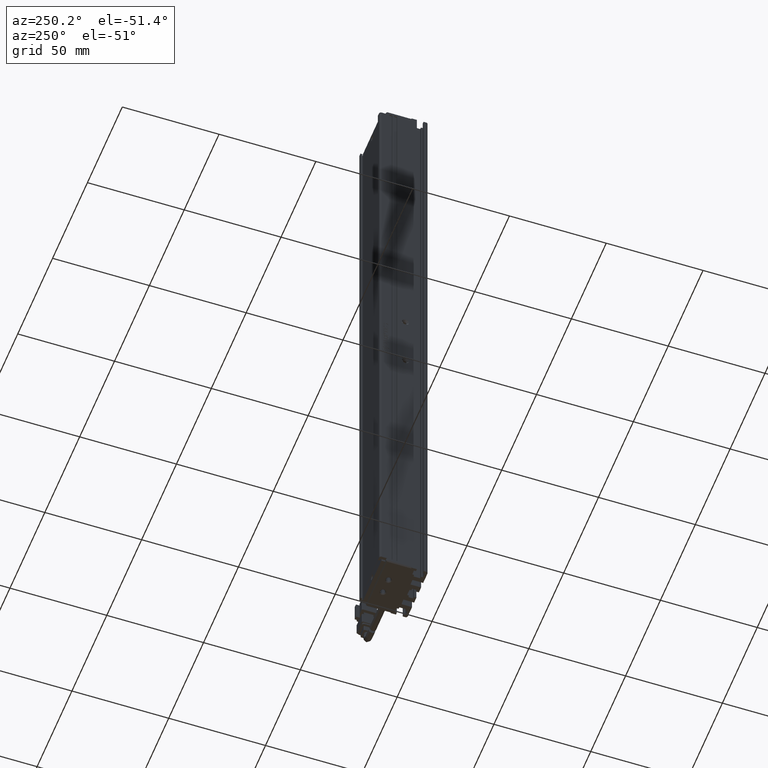
[diagram: clean part render]
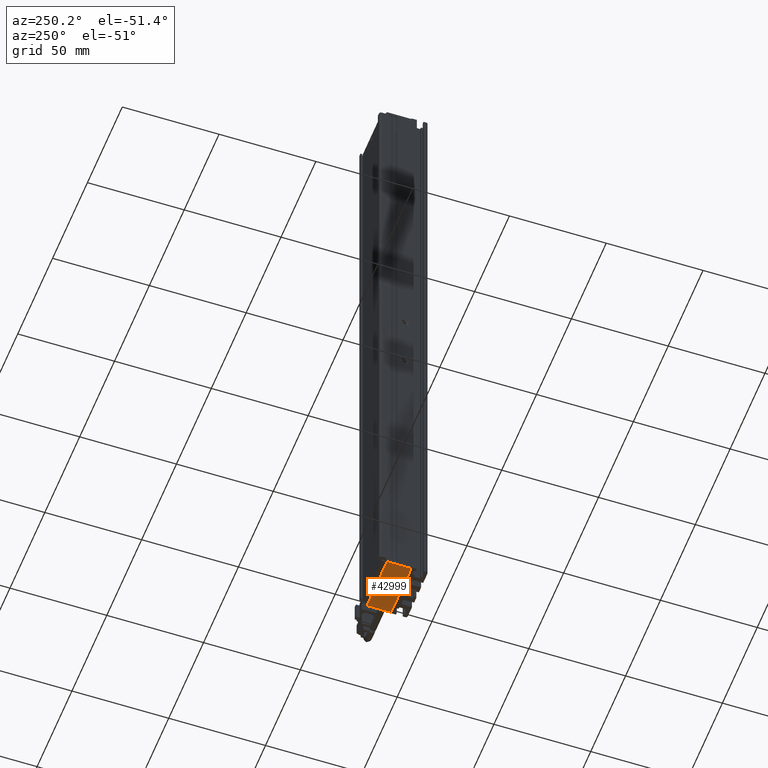
[diagram: same view with one face highlighted and labeled with its STEP entity id]
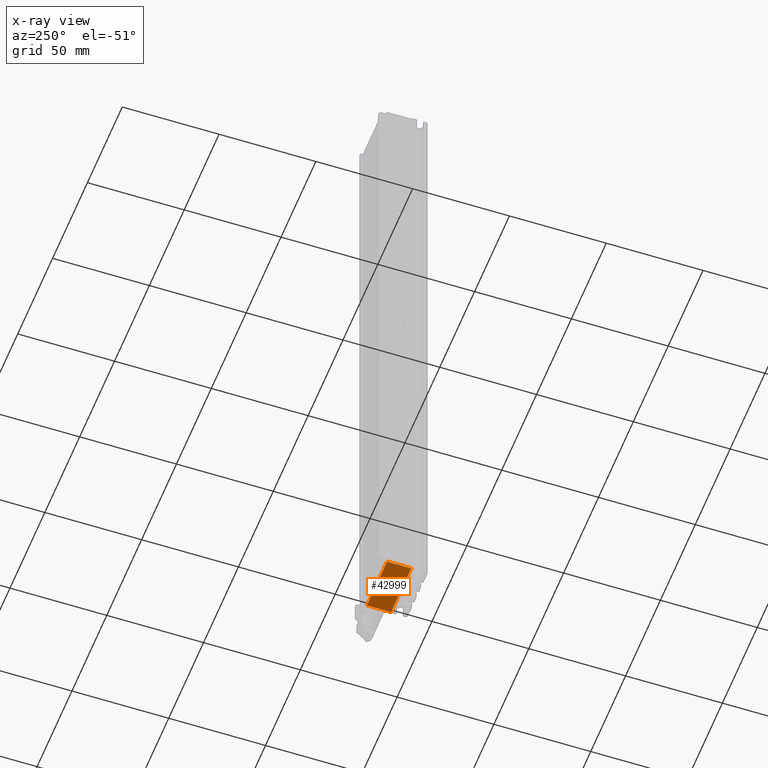
[diagram: x-ray of the same camera — body ghosted, the highlighted face saturated]
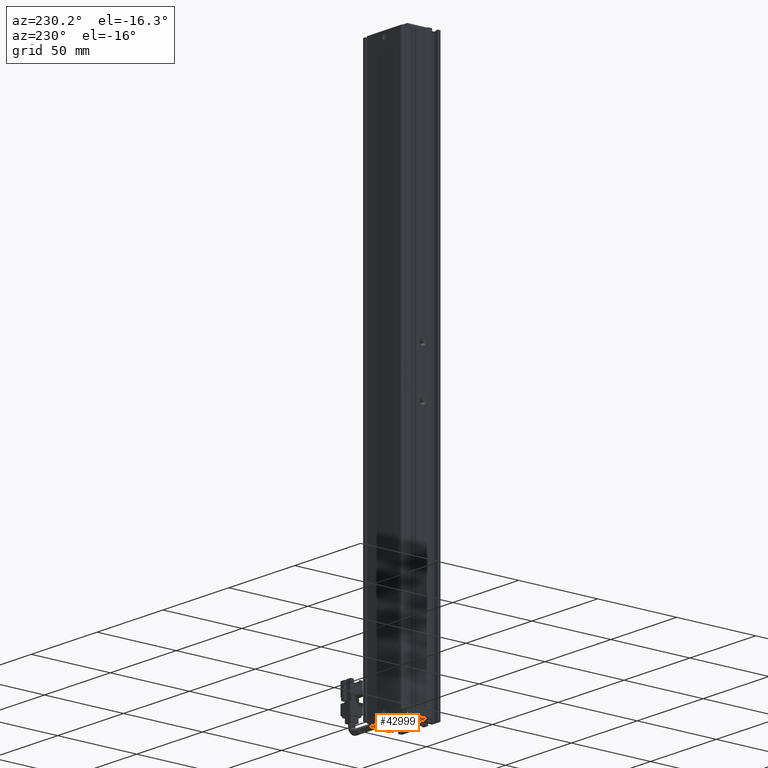
[diagram: same view with one face highlighted and labeled with its STEP entity id]
A machine part, auxiliary view. The second image highlights one B-rep face of the part: STEP entity #42999.
The next image is the same camera in x-ray: the body ghosted, the highlighted face saturated — about 0% of this face is hidden behind the body in this view.
A second angle (auxiliary view) of the same face is appended — the face is thin or edge-on in the first view.
In plain terms, the highlighted planar face has unit normal (0, 0, -1).
Its self-contained STEP definition (entity closure, byte-faithful):
#710 = VECTOR ( 'NONE', #64110, 1000.000000000000000 ) ;
#966 = FACE_BOUND ( 'NONE', #46968, .T. ) ;
#1282 = CARTESIAN_POINT ( 'NONE',  ( 44.92537974683542500, 27.19594479660386500, -290.0000000000000000 ) ) ;
#1434 = CARTESIAN_POINT ( 'NONE',  ( 44.92537974683542500, 27.19594479660386500, -290.0000000000000000 ) ) ;
#1730 = DIRECTION ( 'NONE',  ( -0.0000000000000000000, -0.0000000000000000000, 1.000000000000000000 ) ) ;
#2057 = DIRECTION ( 'NONE',  ( -0.0000000000000000000, -1.000000000000000000, -0.0000000000000000000 ) ) ;
#2204 = AXIS2_PLACEMENT_3D ( 'NONE', #33611, #2539, #38862 ) ;
#2539 = DIRECTION ( 'NONE',  ( -0.0000000000000000000, -0.0000000000000000000, 1.000000000000000000 ) ) ;
#4023 = EDGE_CURVE ( 'NONE', #12435, #7405, #14494, .T. ) ;
#4355 = CARTESIAN_POINT ( 'NONE',  ( 46.62537974684434500, 27.19594479660386500, -290.0000000000000000 ) ) ;
#5517 = VERTEX_POINT ( 'NONE', #64026 ) ;
#5543 = AXIS2_PLACEMENT_3D ( 'NONE', #1434, #37759, #6563 ) ;
#6319 = VERTEX_POINT ( 'NONE', #20261 ) ;
#6428 = DIRECTION ( 'NONE',  ( -1.000000000000000000, 0.0000000000000000000, 0.0000000000000000000 ) ) ;
#6563 = DIRECTION ( 'NONE',  ( -1.000000000000000000, 0.0000000000000000000, 0.0000000000000000000 ) ) ;
#7405 = VERTEX_POINT ( 'NONE', #40309 ) ;
#10495 = VERTEX_POINT ( 'NONE', #43727 ) ;
#10537 = CARTESIAN_POINT ( 'NONE',  ( 35.22537974680740500, 27.19594479660386500, -289.9999999999809000 ) ) ;
#10803 = CIRCLE ( 'NONE', #5543, 1.700000000008916600 ) ;
#12435 = VERTEX_POINT ( 'NONE', #4355 ) ;
#12541 = VECTOR ( 'NONE', #63627, 1000.000000000000000 ) ;
#13940 = VERTEX_POINT ( 'NONE', #65558 ) ;
#14494 = CIRCLE ( 'NONE', #32860, 1.700000000008916600 ) ;
#17324 = EDGE_CURVE ( 'NONE', #5517, #6319, #40585, .T. ) ;
#18088 = EDGE_CURVE ( 'NONE', #10495, #5517, #24832, .T. ) ;
#18181 = EDGE_LOOP ( 'NONE', ( #30276, #65957 ) ) ;
#18844 = VERTEX_POINT ( 'NONE', #10537 ) ;
#20261 = CARTESIAN_POINT ( 'NONE',  ( 26.42537974683542500, 31.69594479660386800, -290.0000000000000000 ) ) ;
#20360 = ORIENTED_EDGE ( 'NONE', *, *, #38757, .T. ) ;
#21578 = PLANE ( 'NONE',  #34920 ) ;
#21803 = CARTESIAN_POINT ( 'NONE',  ( 40.92537974683542500, 25.69594479660386500, -290.0000000000000000 ) ) ;
#22719 = CARTESIAN_POINT ( 'NONE',  ( 55.42537974683541800, 25.69594479660386500, -290.0000000000000000 ) ) ;
#24832 = LINE ( 'NONE', #40702, #64852 ) ;
#26984 = FACE_BOUND ( 'NONE', #18181, .T. ) ;
#27062 = DIRECTION ( 'NONE',  ( -1.000000000000000000, 0.0000000000000000000, -0.0000000000000000000 ) ) ;
#27250 = EDGE_CURVE ( 'NONE', #6319, #65155, #52499, .T. ) ;
#30064 = ORIENTED_EDGE ( 'NONE', *, *, #4023, .T. ) ;
#30276 = ORIENTED_EDGE ( 'NONE', *, *, #37240, .T. ) ;
#32292 = CARTESIAN_POINT ( 'NONE',  ( 40.92537974683542500, 31.69594479660386500, -290.0000000000000000 ) ) ;
#32802 = CARTESIAN_POINT ( 'NONE',  ( 36.92537974683541800, 27.19594479660386500, -289.9999999999809000 ) ) ;
#32860 = AXIS2_PLACEMENT_3D ( 'NONE', #1282, #37603, #6428 ) ;
#33097 = ORIENTED_EDGE ( 'NONE', *, *, #27250, .T. ) ;
#33611 = CARTESIAN_POINT ( 'NONE',  ( 36.92537974683541800, 27.19594479660386500, -289.9999999999809000 ) ) ;
#34920 = AXIS2_PLACEMENT_3D ( 'NONE', #21803, #58328, #27062 ) ;
#37240 = EDGE_CURVE ( 'NONE', #18844, #13940, #63030, .T. ) ;
#37603 = DIRECTION ( 'NONE',  ( -0.0000000000000000000, -0.0000000000000000000, 1.000000000000000000 ) ) ;
#37759 = DIRECTION ( 'NONE',  ( -0.0000000000000000000, -0.0000000000000000000, 1.000000000000000000 ) ) ;
#38061 = DIRECTION ( 'NONE',  ( -1.000000000000000000, 0.0000000000000000000, 0.0000000000000000000 ) ) ;
#38757 = EDGE_CURVE ( 'NONE', #65155, #10495, #43771, .T. ) ;
#38862 = DIRECTION ( 'NONE',  ( -1.000000000000000000, 0.0000000000000000000, 0.0000000000000000000 ) ) ;
#40309 = CARTESIAN_POINT ( 'NONE',  ( 43.22537974682651200, 27.19594479660386500, -290.0000000000000000 ) ) ;
#40585 = LINE ( 'NONE', #64337, #710 ) ;
#40702 = CARTESIAN_POINT ( 'NONE',  ( 40.92537974683542500, 19.19594479660386500, -290.0000000000000000 ) ) ;
#40838 = FACE_OUTER_BOUND ( 'NONE', #63188, .T. ) ;
#42139 = VECTOR ( 'NONE', #2057, 1000.000000000000000 ) ;
#42999 = ADVANCED_FACE ( 'NONE', ( #40838, #26984, #966 ), #21578, .T. ) ;
#43727 = CARTESIAN_POINT ( 'NONE',  ( 55.42537974683541100, 19.19594479660386500, -290.0000000000000000 ) ) ;
#43771 = LINE ( 'NONE', #22719, #42139 ) ;
#43816 = ORIENTED_EDGE ( 'NONE', *, *, #18088, .T. ) ;
#45934 = DIRECTION ( 'NONE',  ( -1.000000000000000000, 0.0000000000000000000, -0.0000000000000000000 ) ) ;
#46968 = EDGE_LOOP ( 'NONE', ( #56517, #30064 ) ) ;
#48902 = ORIENTED_EDGE ( 'NONE', *, *, #17324, .T. ) ;
#52499 = LINE ( 'NONE', #32292, #12541 ) ;
#53633 = EDGE_CURVE ( 'NONE', #7405, #12435, #10803, .T. ) ;
#54000 = AXIS2_PLACEMENT_3D ( 'NONE', #32802, #1730, #38061 ) ;
#56517 = ORIENTED_EDGE ( 'NONE', *, *, #53633, .T. ) ;
#57557 = CARTESIAN_POINT ( 'NONE',  ( 55.42537974683542500, 31.69594479660386800, -290.0000000000000000 ) ) ;
#58328 = DIRECTION ( 'NONE',  ( 0.0000000000000000000, 0.0000000000000000000, -1.000000000000000000 ) ) ;
#63030 = CIRCLE ( 'NONE', #2204, 1.700000000028012400 ) ;
#63188 = EDGE_LOOP ( 'NONE', ( #20360, #43816, #48902, #33097 ) ) ;
#63627 = DIRECTION ( 'NONE',  ( 1.000000000000000000, -0.0000000000000000000, 0.0000000000000000000 ) ) ;
#64026 = CARTESIAN_POINT ( 'NONE',  ( 26.42537974683542500, 19.19594479660386500, -290.0000000000000000 ) ) ;
#64110 = DIRECTION ( 'NONE',  ( 0.0000000000000000000, 1.000000000000000000, 0.0000000000000000000 ) ) ;
#64337 = CARTESIAN_POINT ( 'NONE',  ( 26.42537974683542500, 25.69594479660386500, -290.0000000000000000 ) ) ;
#64852 = VECTOR ( 'NONE', #45934, 1000.000000000000000 ) ;
#65155 = VERTEX_POINT ( 'NONE', #57557 ) ;
#65315 = EDGE_CURVE ( 'NONE', #13940, #18844, #65556, .T. ) ;
#65556 = CIRCLE ( 'NONE', #54000, 1.700000000028012400 ) ;
#65558 = CARTESIAN_POINT ( 'NONE',  ( 38.62537974686343000, 27.19594479660386500, -289.9999999999809000 ) ) ;
#65957 = ORIENTED_EDGE ( 'NONE', *, *, #65315, .T. ) ;